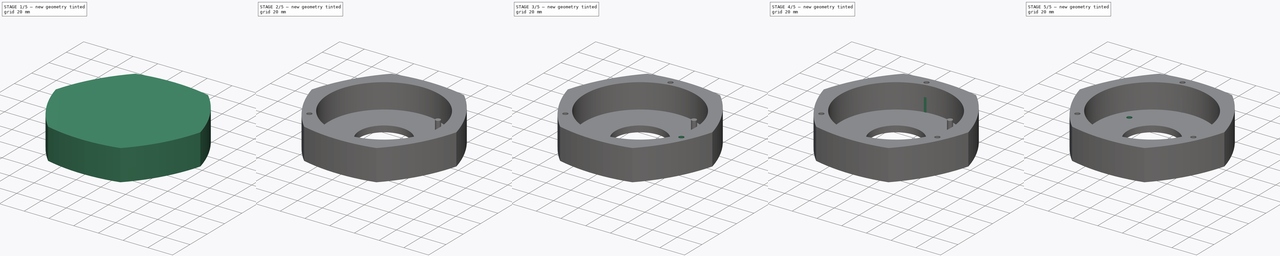
[diagram: build sequence overview — one tinted view per stage of 5, left to right]
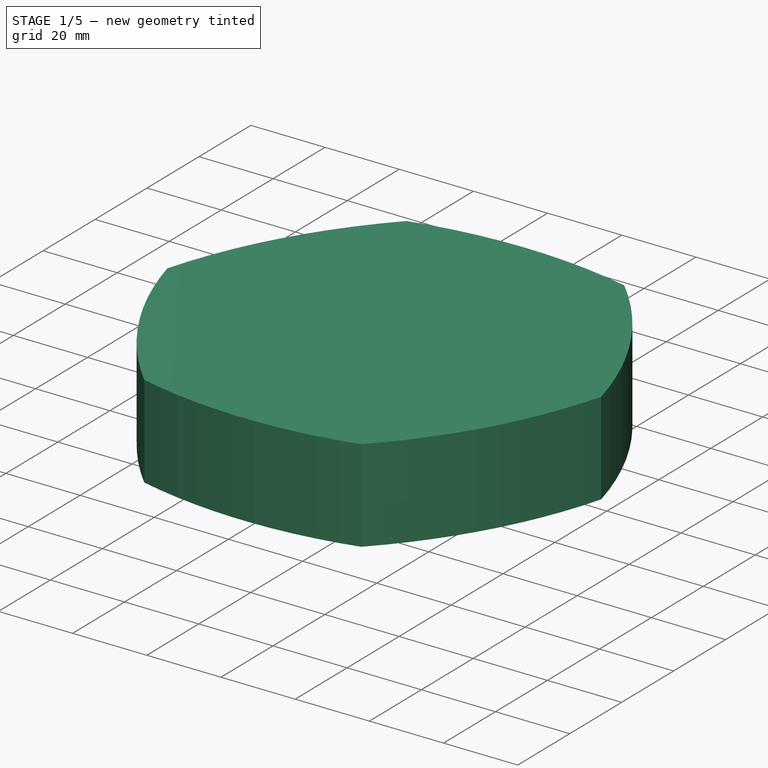
[diagram: stage 1 of 5 — iso view after this stage's code; geometry added in this stage tinted green]
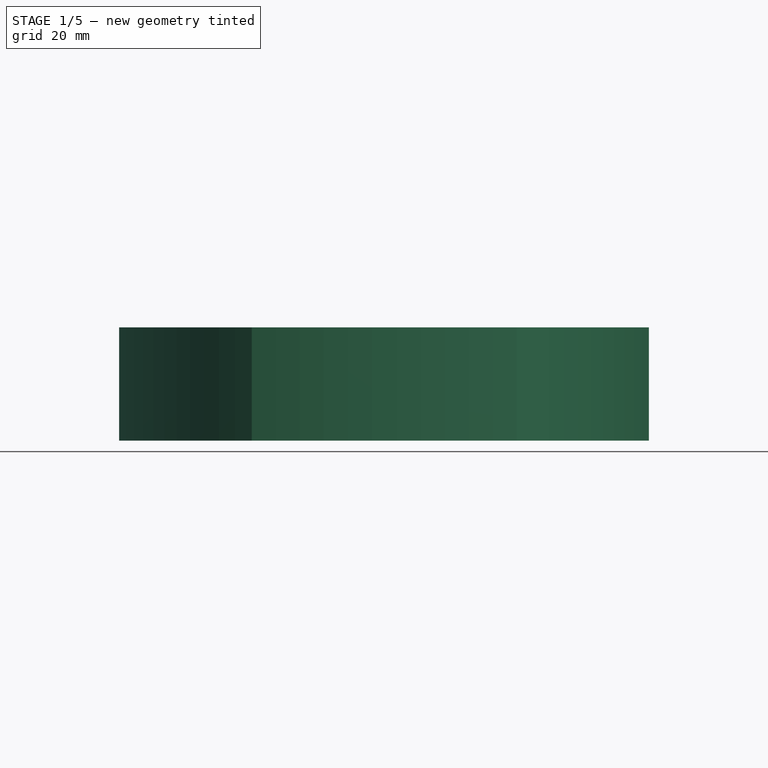
[diagram: stage 1 of 5 — front view after this stage's code; geometry added in this stage tinted green]
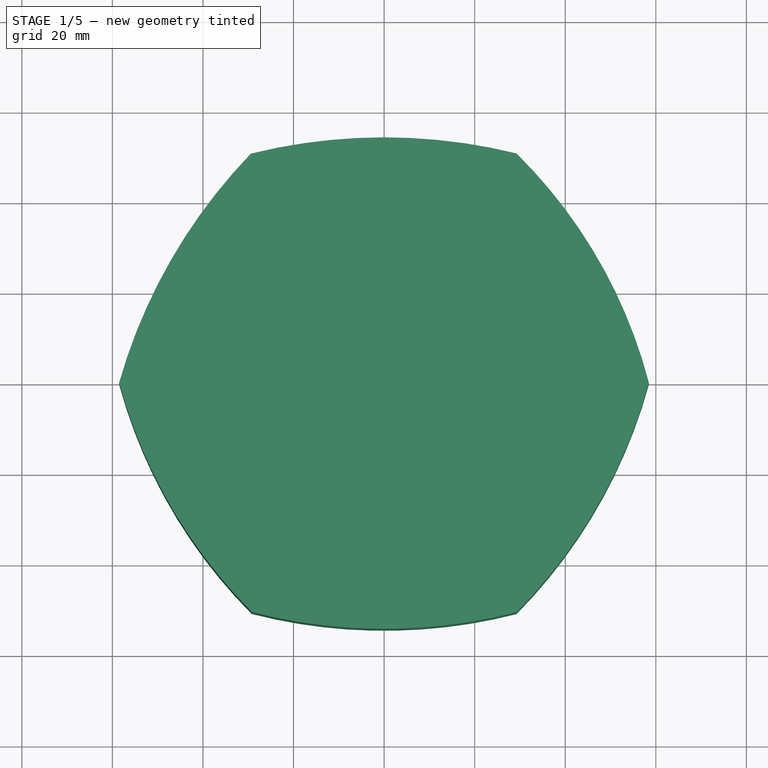
[diagram: stage 1 of 5 — top view after this stage's code; geometry added in this stage tinted green]
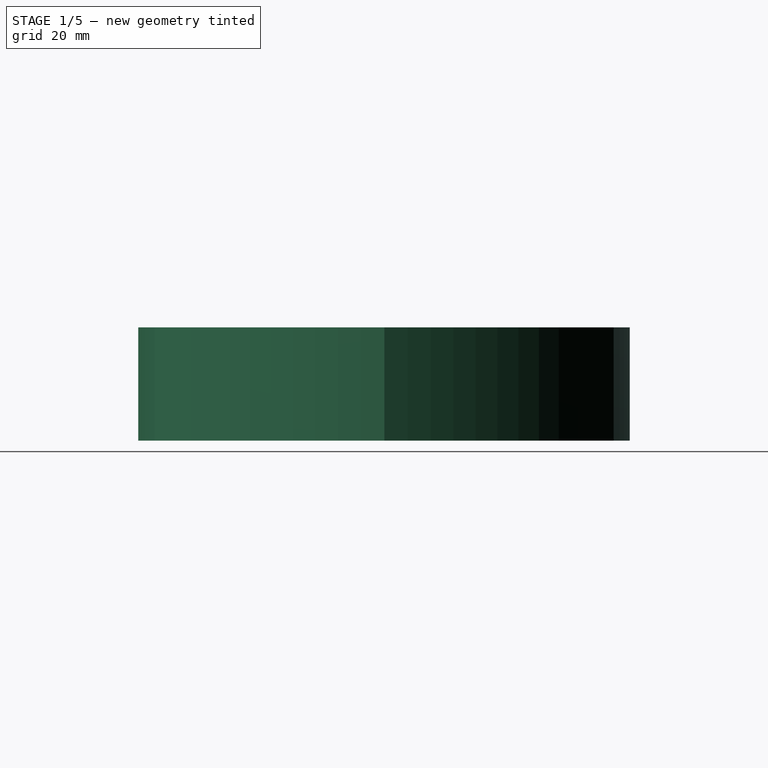
[diagram: stage 1 of 5 — right view after this stage's code; geometry added in this stage tinted green]
FCSTD DOCUMENT  (FreeCAD 0.18R16117 (Git))
Label: amcrest_dome_camera_mount
License: All rights reserved
LicenseURL: http://en.wikipedia.org/wiki/All_rights_reserved
objects: Part::Cut×11, Part::Cylinder×8, Part::Extrusion×4, Part::RegularPolygon×3, Sketcher::SketchObject×1, PartDesign::Body×1
note: 28 computed .brp shape members not serialized (recipe doc carries the construction recipe); baked Part::Feature solids carry a one-line shape summary decoded from their .brp

FEATURE [Sketcher::SketchObject] Sketch
  sketch-geometry (24):
    g0: LineSegment [constr] StartX=0 StartY=0 StartZ=0 EndX=0 EndY=54.1901 EndZ=0
    g1: LineSegment [constr] StartX=0 StartY=0 StartZ=0 EndX=0 EndY=-54.3689 EndZ=0
    g2: LineSegment [constr] StartX=0 StartY=0 StartZ=0 EndX=47.3214 EndY=27.2029 EndZ=0
    g3: LineSegment [constr] StartX=0 StartY=0 StartZ=0 EndX=47.1654 EndY=-27.1543 EndZ=0
    g4: LineSegment [constr] StartX=0 StartY=0 StartZ=0 EndX=-47.1793 EndY=-27.2234 EndZ=0
    g5: LineSegment [constr] StartX=0 StartY=0 StartZ=0 EndX=-47.0075 EndY=27.2195 EndZ=0
    g6: LineSegment [constr] StartX=0 StartY=0 StartZ=0 EndX=58.4737 EndY=0 EndZ=0
    g7: LineSegment [constr] StartX=0 StartY=0 StartZ=0 EndX=-58.5189 EndY=0 EndZ=0
    g8: LineSegment [constr] StartX=0 StartY=0 StartZ=0 EndX=-29.4179 EndY=50.6016 EndZ=0
    g9: LineSegment [constr] StartX=0 StartY=0 StartZ=0 EndX=29.2239 EndY=50.6457 EndZ=0
    g10: LineSegment [constr] StartX=0 StartY=0 StartZ=0 EndX=-29.233 EndY=-50.6603 EndZ=0
    g11: LineSegment [constr] StartX=0 StartY=0 StartZ=0 EndX=29.2634 EndY=-50.6898 EndZ=0
    g12: ArcOfCircle CenterX=51.8001 CenterY=29.9785 CenterZ=0 NormalX=0 NormalY=0 NormalZ=1 AngleXU=0 Radius=114.32 StartAngle=3.40693 EndAngle=3.92455
    g13: ArcOfCircle CenterX=0.072652 CenterY=63.2737 CenterZ=0 NormalX=0 NormalY=0 NormalZ=1 AngleXU=0 Radius=117.643 StartAngle=4.46063 EndAngle=4.96314
    g14: ArcOfCircle CenterX=-53.0926 CenterY=30.5297 CenterZ=0 NormalX=0 NormalY=0 NormalZ=1 AngleXU=0 Radius=115.668 StartAngle=5.50474 EndAngle=6.01608
    g15: ArcOfCircle CenterX=-48.24 CenterY=-27.8619 CenterZ=0 NormalX=0 NormalY=0 NormalZ=1 AngleXU=0 Radius=110.291 StartAngle=0.255389 EndAngle=0.79209
    g16: ArcOfCircle CenterX=-0.00765519 CenterY=-68.1231 CenterZ=0 NormalX=0 NormalY=0 NormalZ=1 AngleXU=0 Radius=122.313 StartAngle=1.32947 EndAngle=1.81363
    g17: ArcOfCircle CenterX=57.2897 CenterY=-32.9327 CenterZ=0 NormalX=0 NormalY=0 NormalZ=1 AngleXU=0 Radius=120.4 StartAngle=2.37483 EndAngle=2.86453
    g18: LineSegment [constr] StartX=0 StartY=-54.3689 StartZ=0 EndX=0 EndY=-31.3922 EndZ=0
    g19: LineSegment [constr] StartX=-47.0075 StartY=27.2195 StartZ=0 EndX=-27.0602 EndY=15.7029 EndZ=0
    g20: LineSegment [constr] StartX=-27.0602 StartY=15.7029 StartZ=0 EndX=-5.30331 EndY=53.3504 EndZ=0
    g21: LineSegment [constr] StartX=0 StartY=-31.3922 StartZ=0 EndX=-43.9633 EndY=-31.4032 EndZ=0
    g22: LineSegment [constr] StartX=47.3214 StartY=27.2029 StartZ=0 EndX=27.4041 EndY=15.7117 EndZ=0
    g23: LineSegment [constr] StartX=27.369 StartY=15.6766 StartZ=0 EndX=49.3652 EndY=-22.4334 EndZ=0
  constraints (44):
    c: Coincident(g0,g-1)
    c: PointOnObject(g0,g-2)
    c: PointOnObject(g1,g-2)
    c: Vertical(g1)
    c: Coincident(g2,g-1)
    c: Coincident(g3,g-1)
    c: Coincident(g4,g-1)
    c: Coincident(g5,g-1)
    c: Coincident(g6,g-1)
    c: PointOnObject(g6,g-1)
    c: Coincident(g7,g-1)
    c: Horizontal(g7)
    c: Coincident(g8,g-1)
    c: Coincident(g9,g-1)
    c: Coincident(g10,g-1)
    c: Coincident(g11,g-1)
    c: Coincident(g12,g7)
    c: Coincident(g12,g10)
    c: PointOnObject(g4,g12)
    c: Coincident(g13,g10)
    c: Coincident(g13,g11)
    c: PointOnObject(g1,g13)
    c: Coincident(g14,g11)
    c: Coincident(g14,g6)
    c: PointOnObject(g3,g14)
    c: Coincident(g15,g6)
    c: Coincident(g15,g9)
    c: PointOnObject(g2,g15)
    c: Coincident(g16,g9)
    c: Coincident(g16,g8)
    c: PointOnObject(g0,g16)
    c: Coincident(g17,g8)
    c: Coincident(g17,g7)
    c: PointOnObject(g5,g17)
    c: PointOnObject(g18,g1)
    c: Coincident(g18,g1)
    c: Vertical(g18)
    c: Coincident(g19,g5)
    c: PointOnObject(g19,g5)
    c: Coincident(g20,g19)
    c: Coincident(g21,g18)
    c: Horizontal(g21)
    c: Coincident(g22,g2)
    c: Coincident(g23,g22)
FEATURE [PartDesign::Body] Body
  Group = -> [Sketch]
  Origin = -> Origin
FEATURE [Part::Extrusion] Extrude
  Base = -> Sketch
  Dir = (0,0,1)
  DirMode = 2
  FaceMakerClass = Part::FaceMakerBullseye
  LengthFwd = 25
  LengthRev = 0
  Solid = true
  Symmetric = false
FEATURE [Part::Cylinder] Cylinder
  Angle = 360
  AttacherType = Attacher::AttachEngine3D
  Height = 20
  Placement = pos=(0,0,5) rot=(0,0,1;0rad)
  Radius = 45
  expr: Height = 20
FEATURE [Part::Cylinder] Cylinder001
  Angle = 360
  AttacherType = Attacher::AttachEngine3D
  Height = 5
  Radius = 20
  expr: Height = 5
FEATURE [Part::Cylinder] Cylinder002
  Angle = 360
  AttacherType = Attacher::AttachEngine3D
  Height = 25
  Placement = pos=(-38,-32,0) rot=(0,0,1;0rad)
  Radius = 2
FEATURE [Part::Cylinder] Cylinder005
  Angle = 360
  AttacherType = Attacher::AttachEngine3D
  Height = 20
  Placement = pos=(31,18,0) rot=(0,0,1;0rad)
  Radius = 2
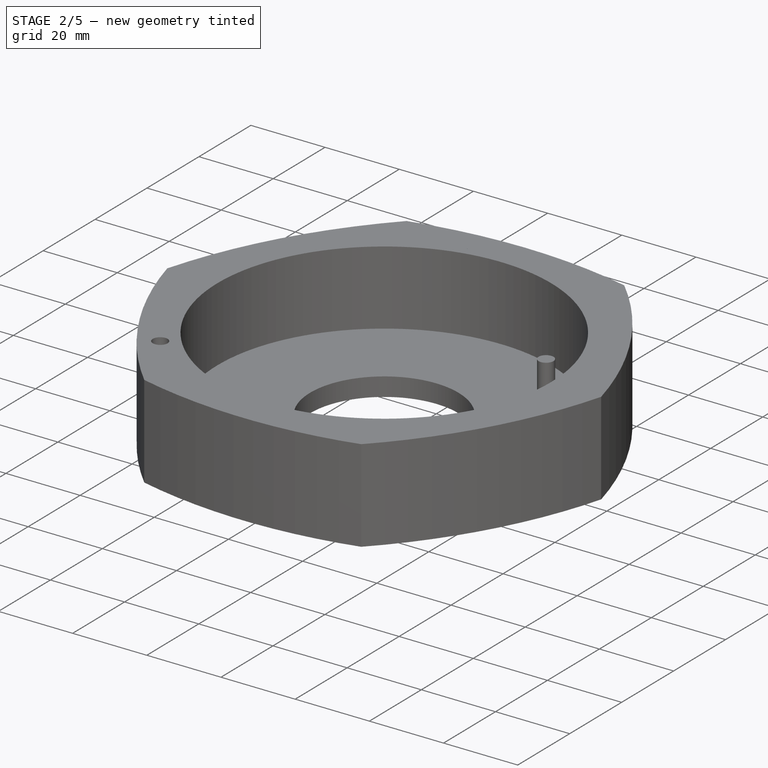
[diagram: stage 2 of 5 — iso view after this stage's code; geometry added in this stage tinted green]
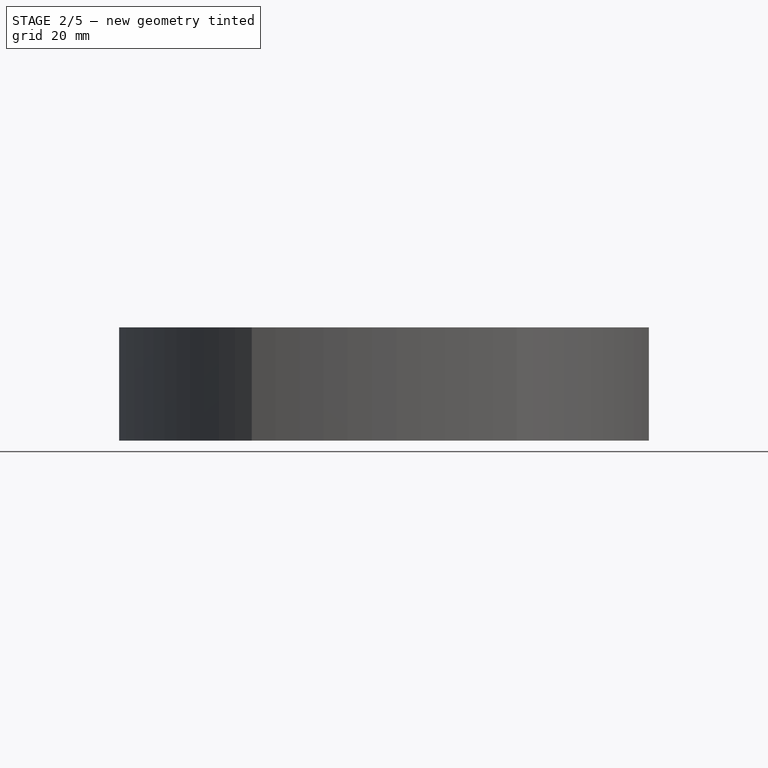
[diagram: stage 2 of 5 — front view after this stage's code; geometry added in this stage tinted green]
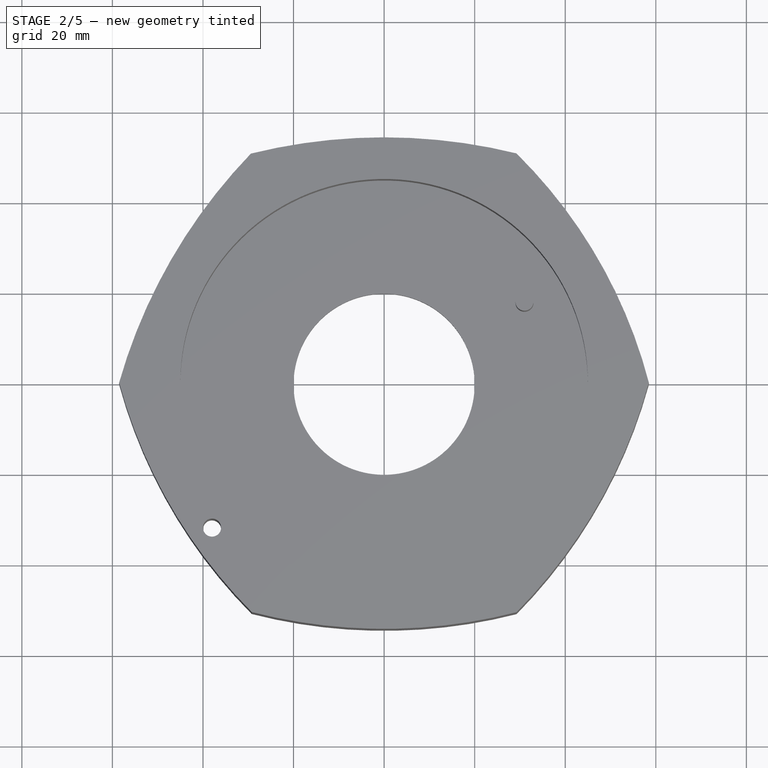
[diagram: stage 2 of 5 — top view after this stage's code; geometry added in this stage tinted green]
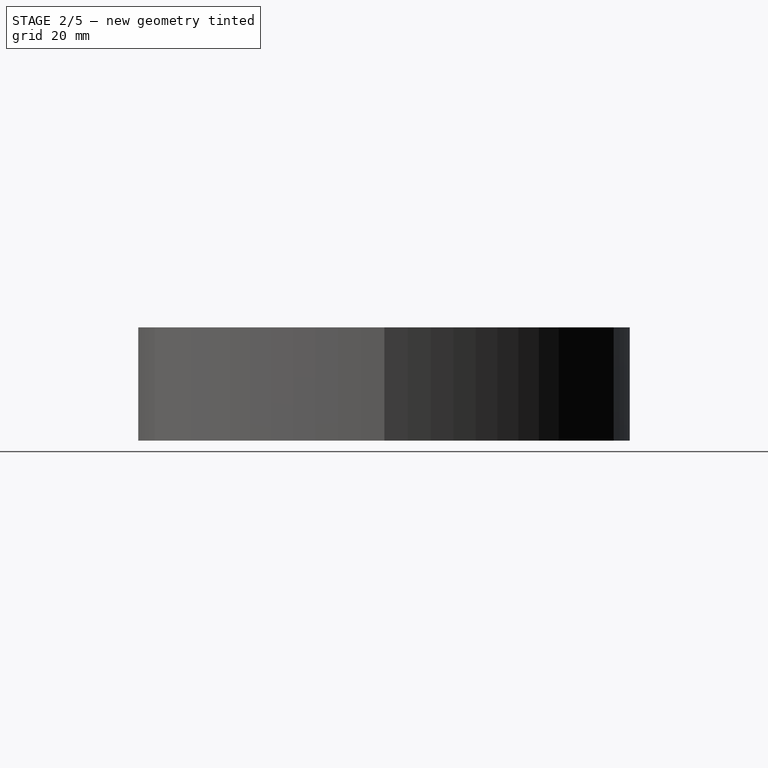
[diagram: stage 2 of 5 — right view after this stage's code; geometry added in this stage tinted green]
FEATURE [Part::Cut] Cut
  Base = -> Extrude
  Tool = -> Cylinder
FEATURE [Part::Cut] Cut001
  Base = -> Cut
  Tool = -> Cylinder001
FEATURE [Part::Cylinder] Cylinder003
  Angle = 360
  AttacherType = Attacher::AttachEngine3D
  Height = 25
  Placement = pos=(-9,48,0) rot=(0,0,1;0rad)
  Radius = 2
FEATURE [Part::Cut] Cut002
  Base = -> Cut001
  Tool = -> Cylinder002
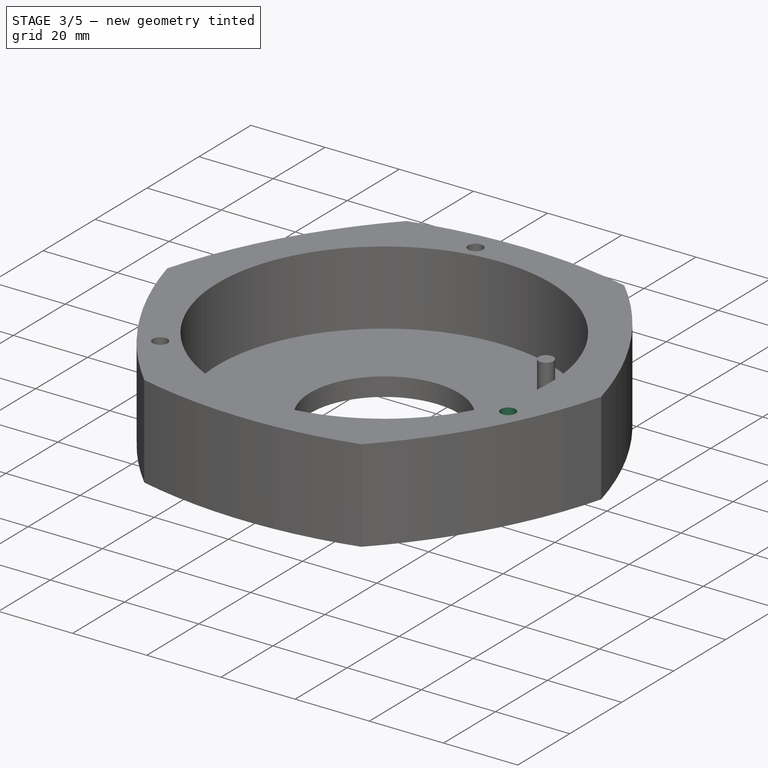
[diagram: stage 3 of 5 — iso view after this stage's code; geometry added in this stage tinted green]
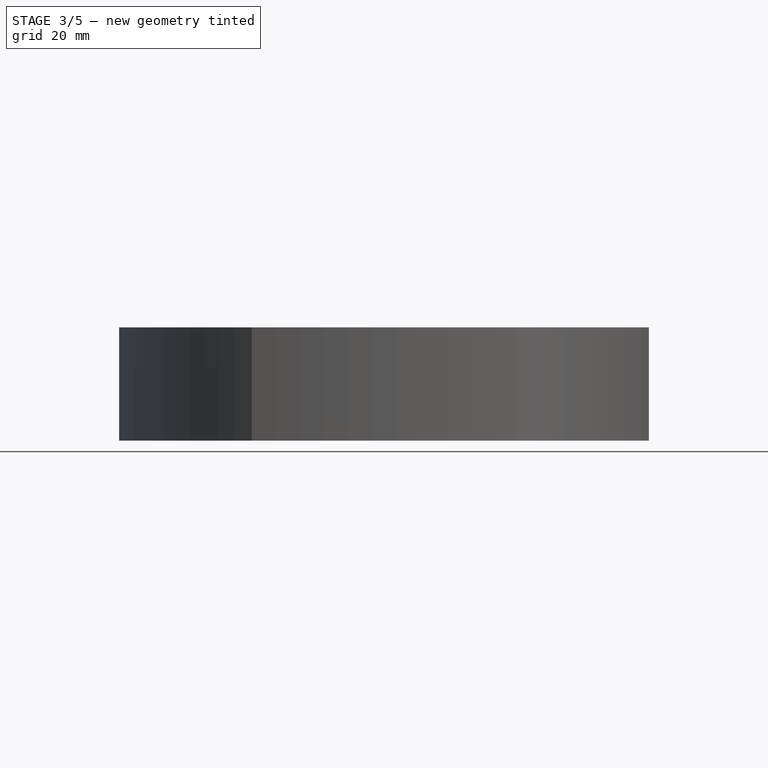
[diagram: stage 3 of 5 — front view after this stage's code; geometry added in this stage tinted green]
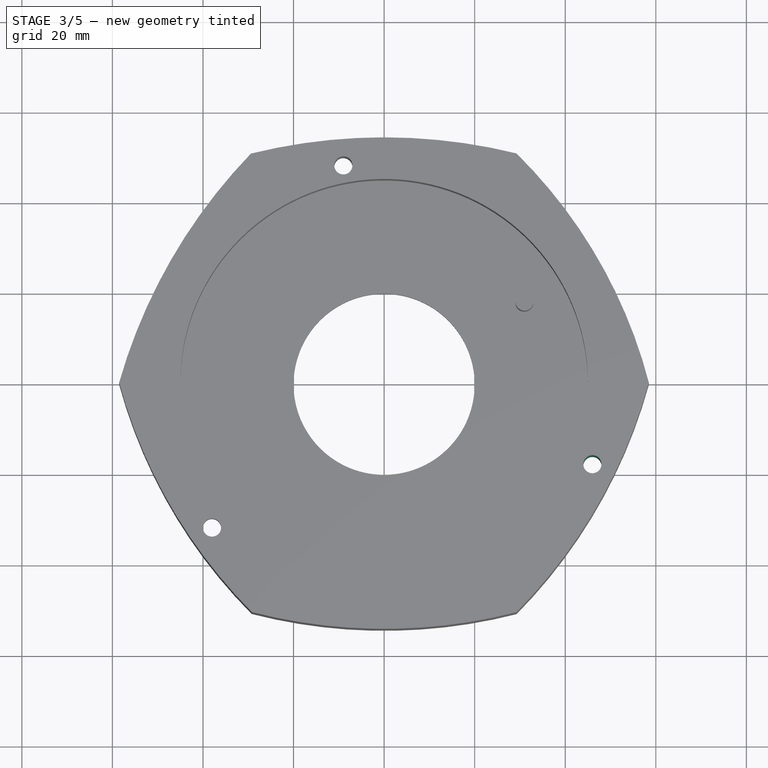
[diagram: stage 3 of 5 — top view after this stage's code; geometry added in this stage tinted green]
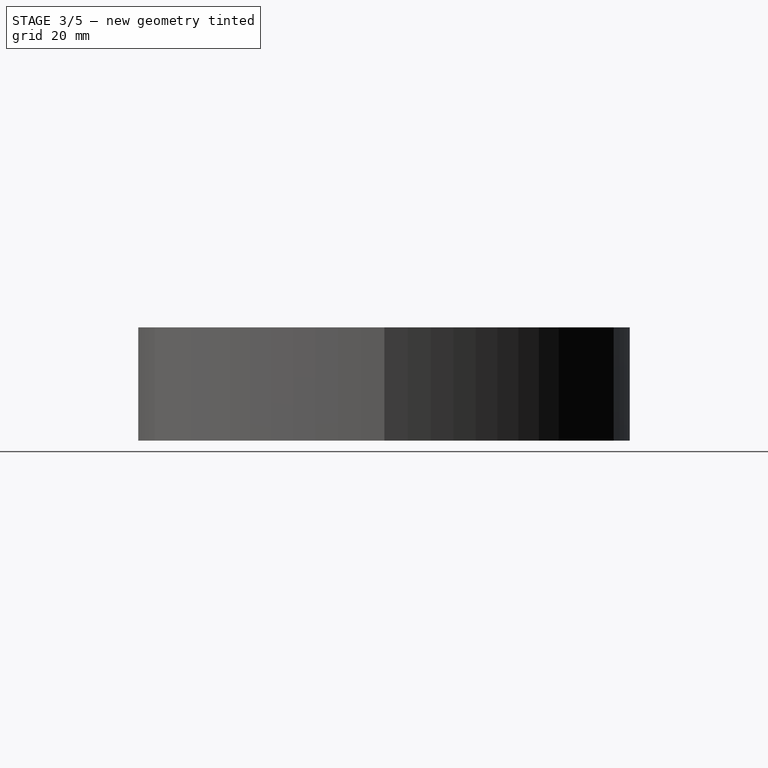
[diagram: stage 3 of 5 — right view after this stage's code; geometry added in this stage tinted green]
FEATURE [Part::Cylinder] Cylinder004
  Angle = 360
  AttacherType = Attacher::AttachEngine3D
  Height = 25
  Placement = pos=(46,-18,0) rot=(0,0,1;0rad)
  Radius = 2
FEATURE [Part::RegularPolygon] RegularPolygon  label="Regular polygon"
  AttacherType = Attacher::AttachEngine3D
  Circumradius = 4.4
  Placement = pos=(-38,-32,0) rot=(0,0,1;0rad)
  Polygon = 6
FEATURE [Part::RegularPolygon] RegularPolygon001  label="Regular polygon001"
  AttacherType = Attacher::AttachEngine3D
  Circumradius = 4.4
  Placement = pos=(-9,48,0) rot=(0,0,1;0rad)
  Polygon = 6
FEATURE [Part::RegularPolygon] RegularPolygon002  label="Regular polygon002"
  AttacherType = Attacher::AttachEngine3D
  Circumradius = 4.4
  Placement = pos=(46,-18,0) rot=(0,0,1;0rad)
  Polygon = 6
FEATURE [Part::Extrusion] Extrude001
  Base = -> RegularPolygon
  Dir = (0,0,1)
  DirMode = 2
  FaceMakerClass = Part::FaceMakerBullseye
  LengthFwd = 16
  LengthRev = 0
  Solid = true
  Symmetric = false
FEATURE [Part::Cut] Cut003
  Base = -> Cut002
  Tool = -> Cylinder003
FEATURE [Part::Cut] Cut004
  Base = -> Cut003
  Tool = -> Cylinder004
FEATURE [Part::Cut] Cut005
  Base = -> Cut004
  Tool = -> Extrude001
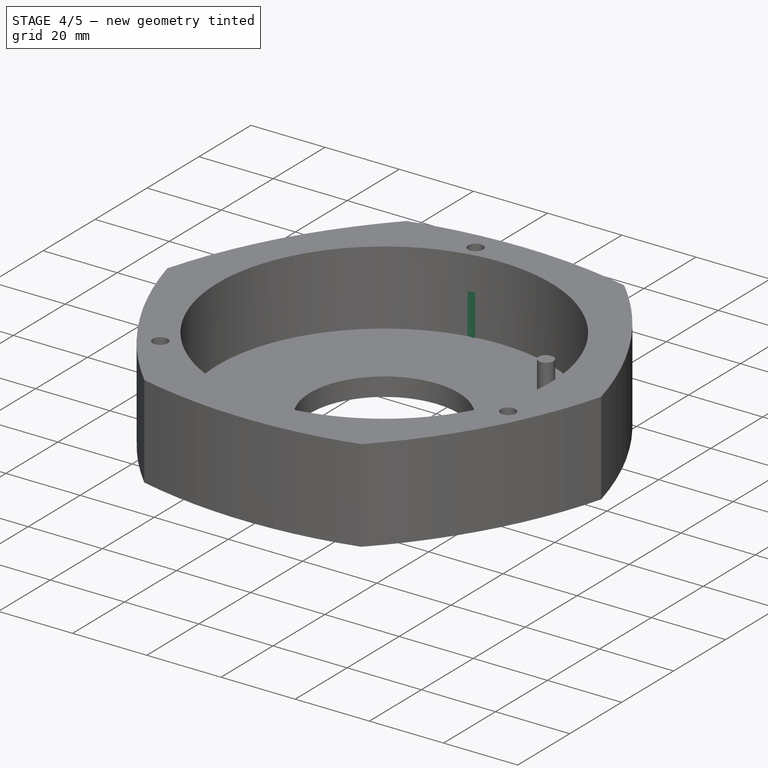
[diagram: stage 4 of 5 — iso view after this stage's code; geometry added in this stage tinted green]
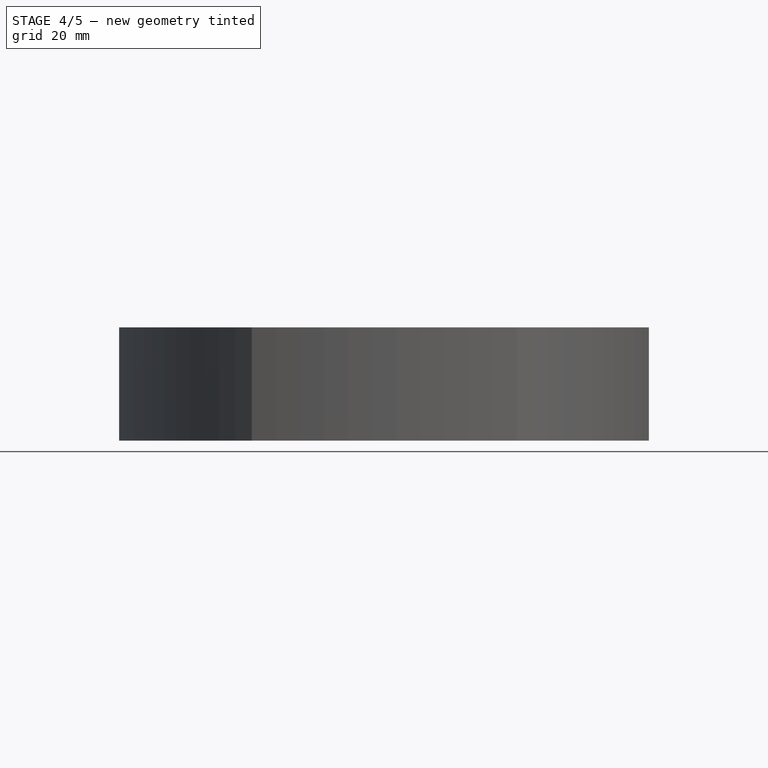
[diagram: stage 4 of 5 — front view after this stage's code; geometry added in this stage tinted green]
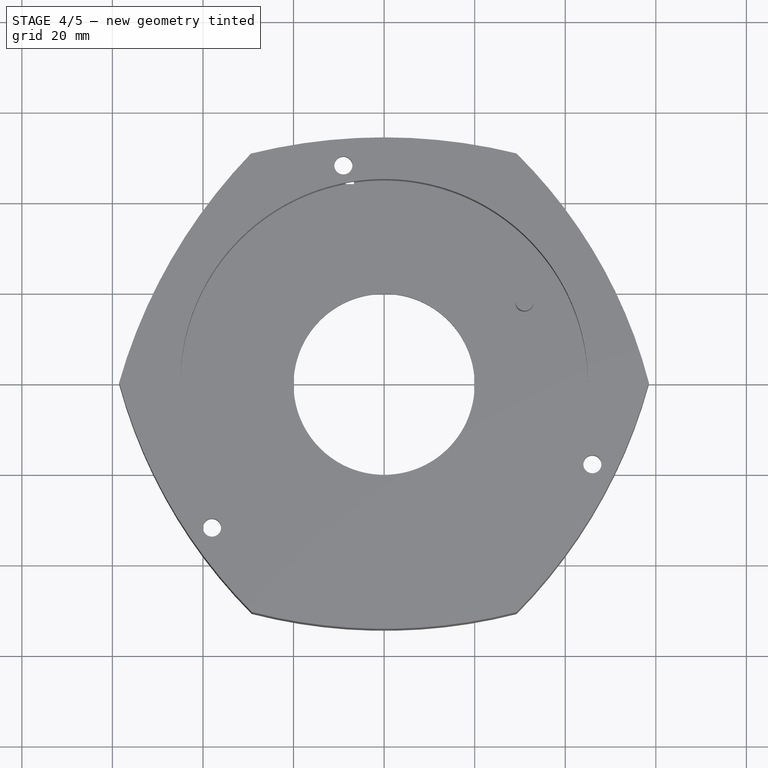
[diagram: stage 4 of 5 — top view after this stage's code; geometry added in this stage tinted green]
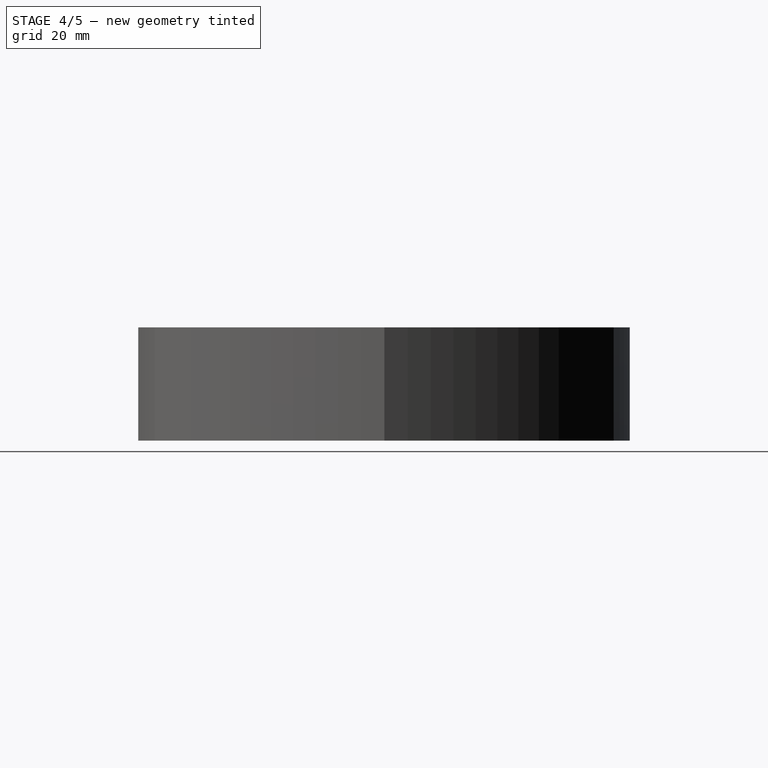
[diagram: stage 4 of 5 — right view after this stage's code; geometry added in this stage tinted green]
FEATURE [Part::Extrusion] Extrude002
  Base = -> RegularPolygon001
  Dir = (0,0,1)
  DirMode = 2
  FaceMakerClass = Part::FaceMakerBullseye
  LengthFwd = 16
  LengthRev = 0
  Solid = true
  Symmetric = false
FEATURE [Part::Extrusion] Extrude003
  Base = -> RegularPolygon002
  Dir = (0,0,1)
  DirMode = 2
  FaceMakerClass = Part::FaceMakerBullseye
  LengthFwd = 16
  LengthRev = 0
  Solid = true
  Symmetric = false
FEATURE [Part::Cut] Cut006
  Base = -> Cut005
  Tool = -> Extrude002
FEATURE [Part::Cut] Cut007
  Base = -> Cut006
  Tool = -> Extrude003
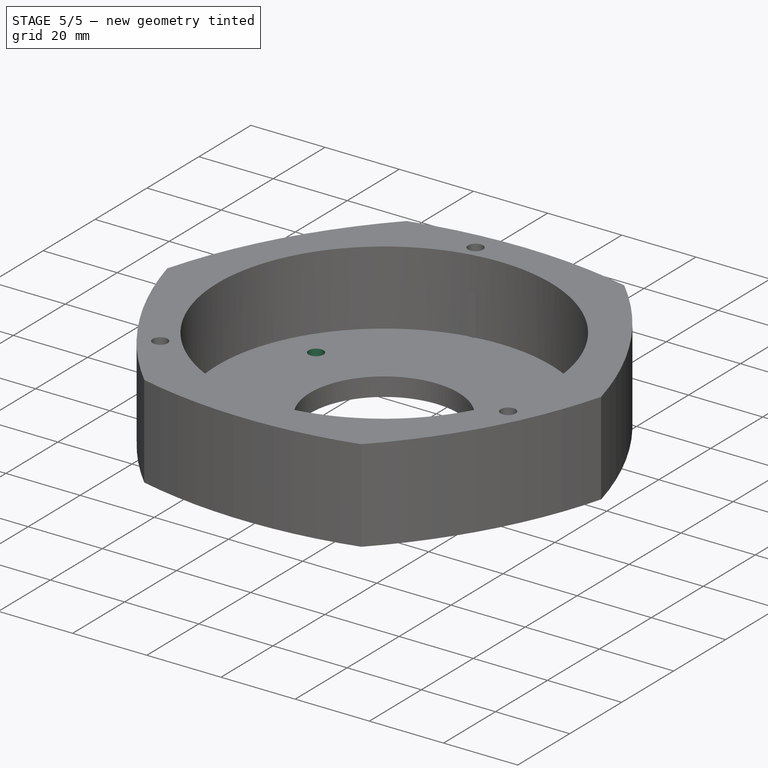
[diagram: stage 5 of 5 — iso view after this stage's code; geometry added in this stage tinted green]
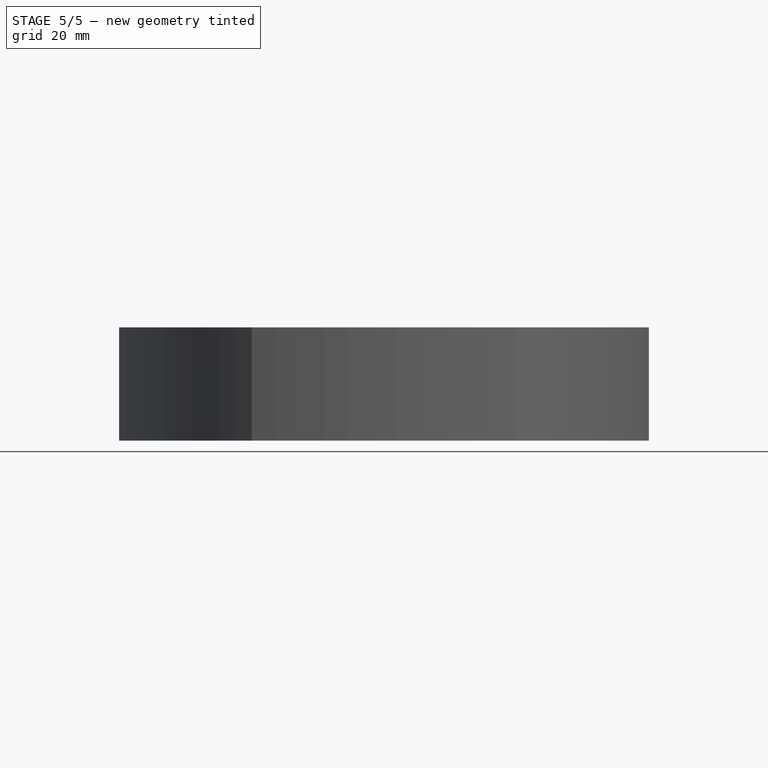
[diagram: stage 5 of 5 — front view after this stage's code; geometry added in this stage tinted green]
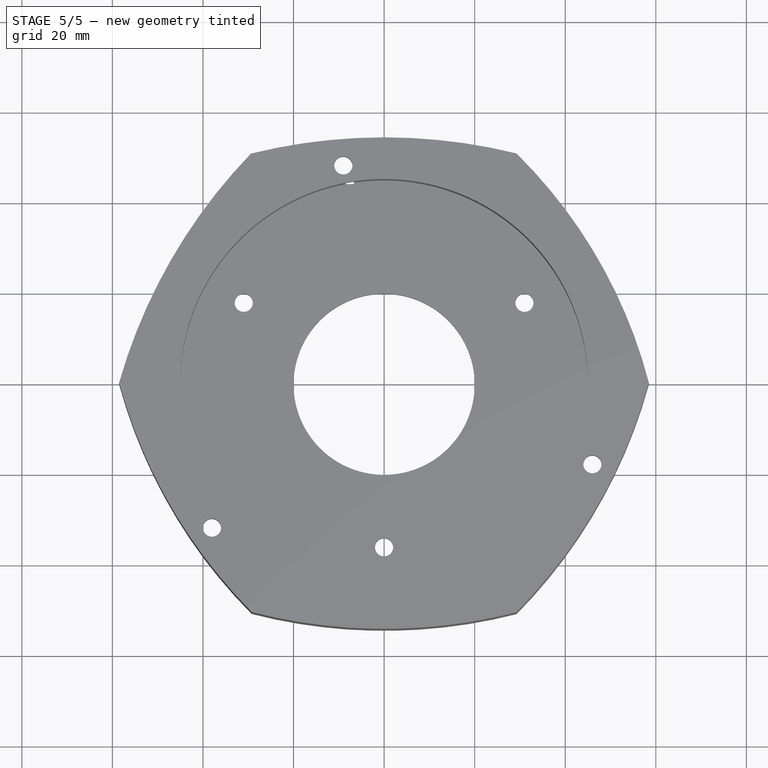
[diagram: stage 5 of 5 — top view after this stage's code; geometry added in this stage tinted green]
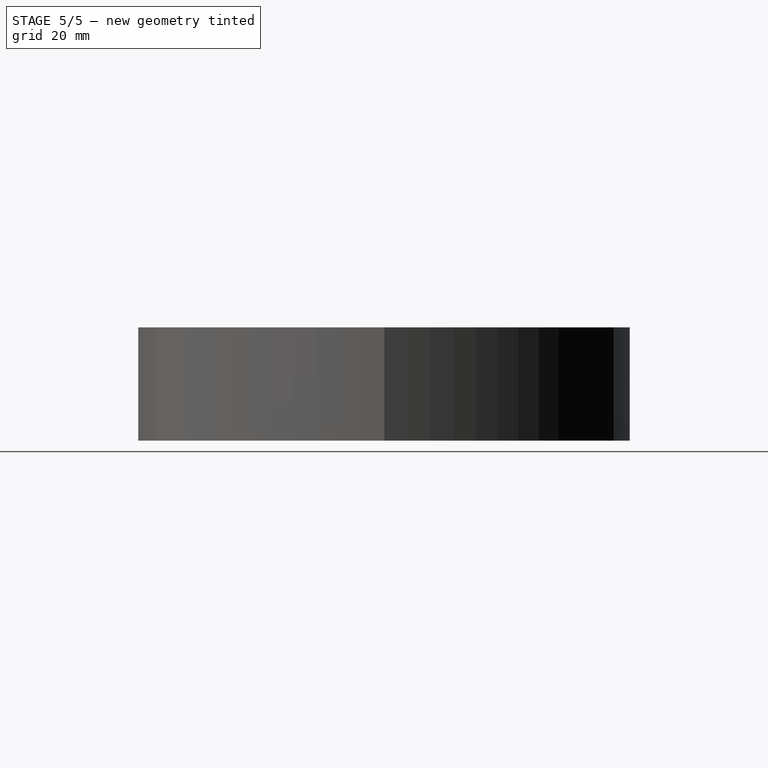
[diagram: stage 5 of 5 — right view after this stage's code; geometry added in this stage tinted green]
FEATURE [Part::Cylinder] Cylinder006
  Angle = 360
  AttacherType = Attacher::AttachEngine3D
  Height = 20
  Placement = pos=(-31,18,0) rot=(0,0,1;0rad)
  Radius = 2
FEATURE [Part::Cylinder] Cylinder007
  Angle = 360
  AttacherType = Attacher::AttachEngine3D
  Height = 20
  Placement = pos=(0,-36,0) rot=(0,0,1;0rad)
  Radius = 2
  expr: Placement.Base.x = 0
FEATURE [Part::Cut] Cut008
  Base = -> Cut007
  Tool = -> Cylinder005
FEATURE [Part::Cut] Cut009
  Base = -> Cut008
  Tool = -> Cylinder007
FEATURE [Part::Cut] Cut010
  Base = -> Cut009
  Tool = -> Cylinder006
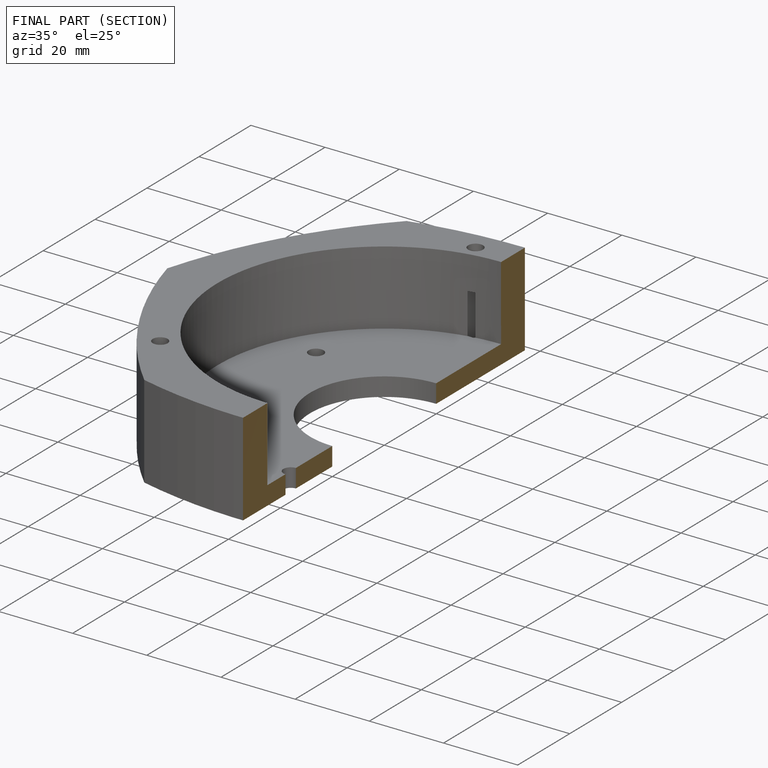
[diagram: finished part — half-section view (interior)]
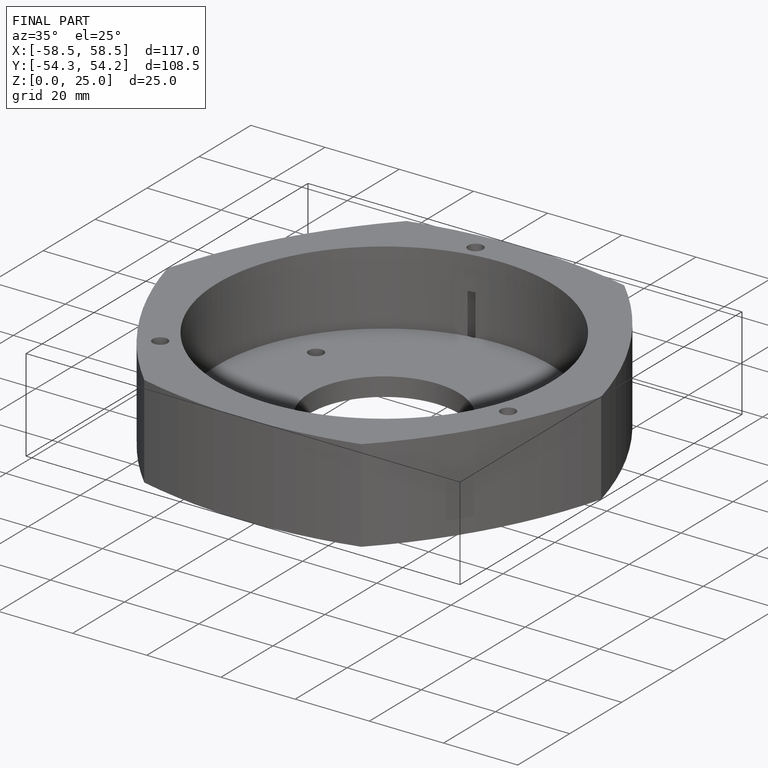
[diagram: finished part — iso view with bounding-box wireframe]
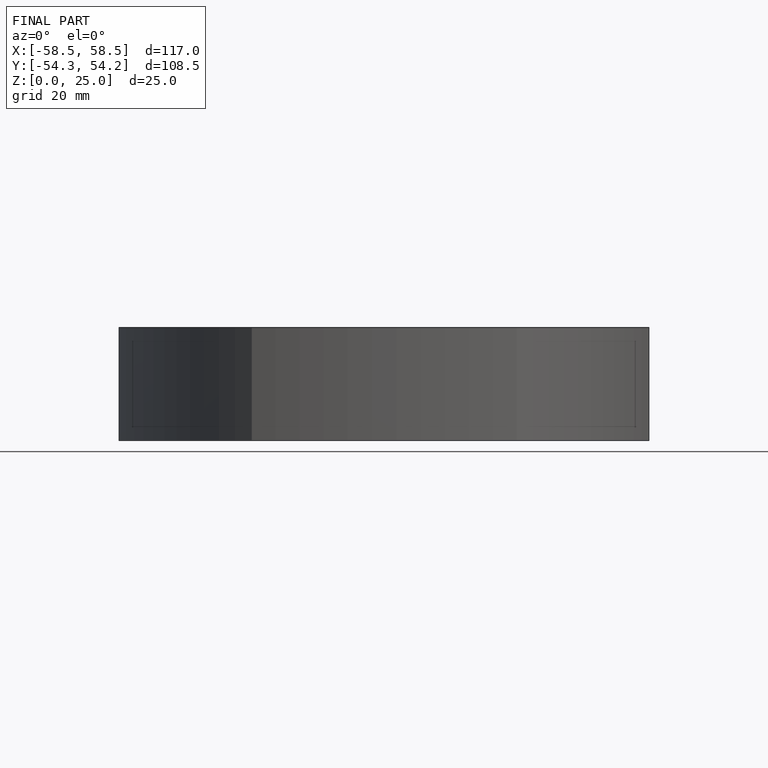
[diagram: finished part — front view with bounding-box wireframe]
